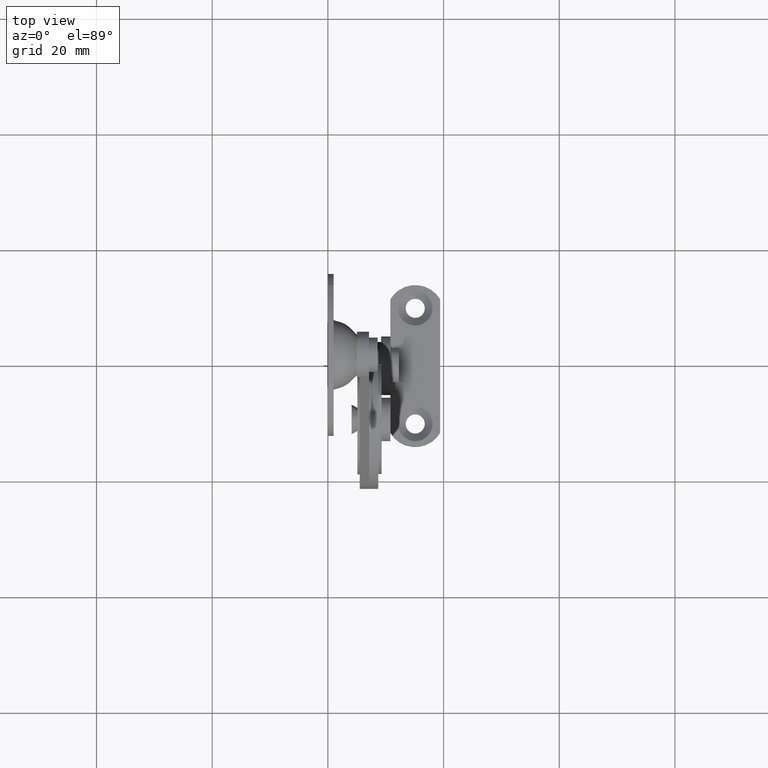
[diagram: clean part render]
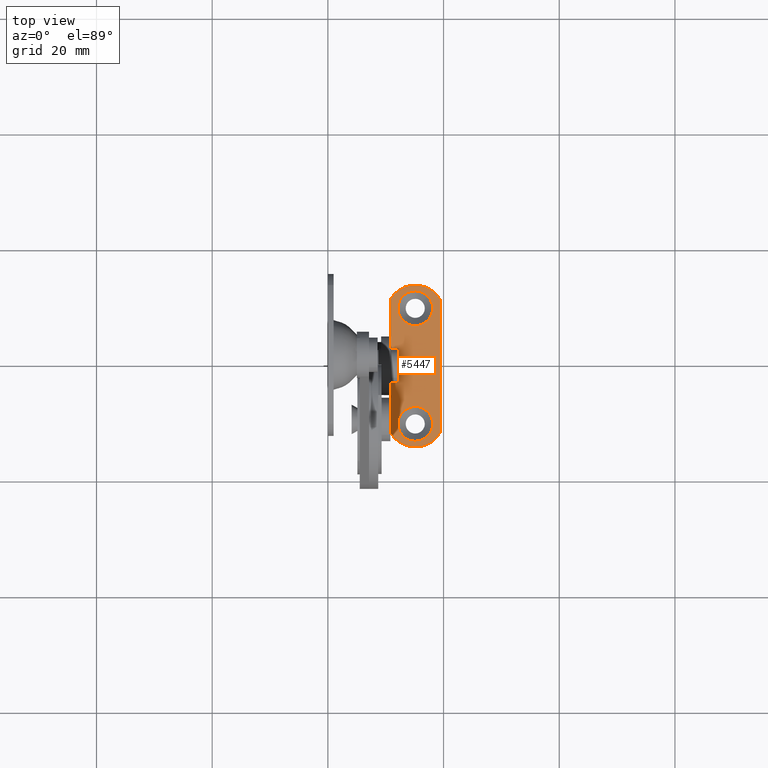
[diagram: same view with one face highlighted and labeled with its STEP entity id]
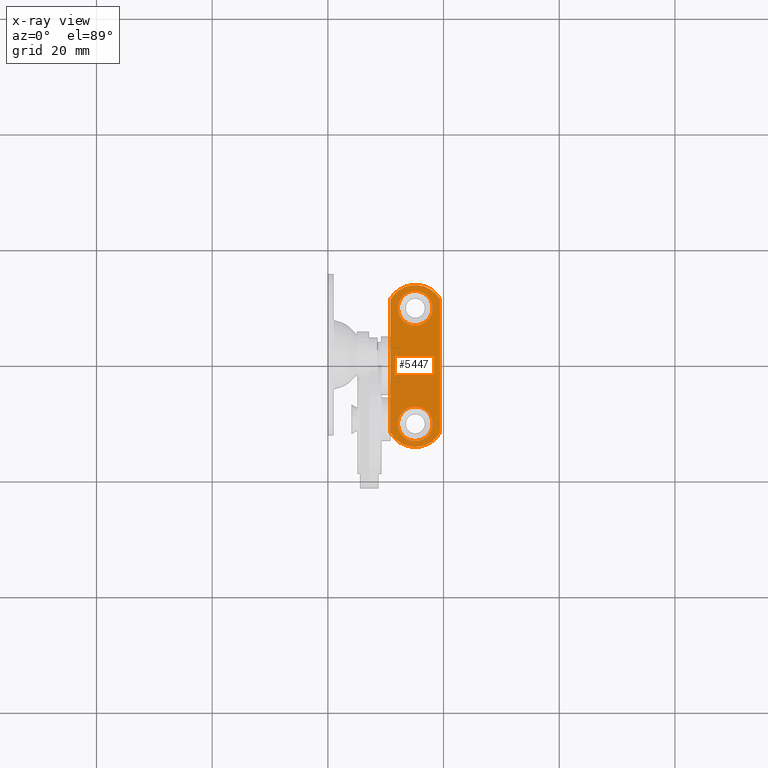
[diagram: x-ray of the same camera — body ghosted, the highlighted face saturated]
A machine part, top view. The second image highlights one B-rep face of the part: STEP entity #5447.
The next image is the same camera in x-ray: the body ghosted, the highlighted face saturated — about 0% of this face is hidden behind the body in this view.
In plain terms, the highlighted face is a freeform B-spline surface patch.
Its self-contained STEP definition (entity closure, byte-faithful):
#4293=CARTESIAN_POINT('',(13.162773359914031,-7.709332450463078,-57.999999729024040));
#4294=VERTEX_POINT('',#4293);
#4300=CARTESIAN_POINT('',(12.100000000002050,-10.0,-58.0));
#4301=VERTEX_POINT('',#4300);
#4302=CARTESIAN_POINT('',(13.162773359914031,-7.709332450463078,-57.999999729024040));
#4303=CARTESIAN_POINT('',(13.007280133966180,-7.840804967206789,-57.999999744576627));
#4304=CARTESIAN_POINT('',(12.694789849034709,-8.165030385356998,-57.999999782931120));
#4305=CARTESIAN_POINT('',(12.362629249856070,-8.715345442064965,-57.999999848030910));
#4306=CARTESIAN_POINT('',(12.148809581624709,-9.348413734711855,-57.999999922920431));
#4307=CARTESIAN_POINT('',(12.099951950325140,-9.769219532580742,-57.999999972699641));
#4308=CARTESIAN_POINT('',(12.100000000002050,-10.0,-58.0));
#4309=B_SPLINE_CURVE_WITH_KNOTS('',3,(#4302,#4303,#4304,#4305,#4306,#4307,#4308),.UNSPECIFIED.,.F.,.U.,(4,1,1,1,4),(0.000000050232684,0.610880641542182,1.343913375715213,1.914093232973730,2.606425233096739),.UNSPECIFIED.);
#4310=EDGE_CURVE('',#4294,#4301,#4309,.T.);
#4312=CARTESIAN_POINT('',(15.100002198323301,-12.999999999999201,-58.0));
#4313=VERTEX_POINT('',#4312);
#4314=CARTESIAN_POINT('',(12.100000000002050,-10.0,-58.0));
#4315=CARTESIAN_POINT('',(12.099829839507681,-10.319093579823839,-57.999999999999943));
#4316=CARTESIAN_POINT('',(12.175111650907411,-10.785304401216081,-58.000000000000107));
#4317=CARTESIAN_POINT('',(12.429464646570301,-11.399204609142680,-57.999999999999922));
#4318=CARTESIAN_POINT('',(12.719714037497200,-11.857602095192201,-58.000000000000007));
#4319=CARTESIAN_POINT('',(13.127845110601911,-12.286267264025630,-58.000000000000092));
#4320=CARTESIAN_POINT('',(13.611765941469249,-12.627084260445161,-57.999999999999943));
#4321=CARTESIAN_POINT('',(14.265611471135051,-12.916962740594601,-57.999999999999943));
#4322=CARTESIAN_POINT('',(14.780912233271570,-13.000175454037199,-58.000000000000277));
#4323=CARTESIAN_POINT('',(15.100002198323301,-12.999999999999201,-58.0));
#4324=B_SPLINE_CURVE_WITH_KNOTS('',3,(#4314,#4315,#4316,#4317,#4318,#4319,#4320,#4321,#4322,#4323),.UNSPECIFIED.,.F.,.U.,(4,1,1,1,1,1,1,4),(0.000000080105825,0.957223162310167,1.399033147921764,1.988114693763748,2.577133832276427,3.166201750299932,3.755286619769515,4.712508472046030),.UNSPECIFIED.);
#4325=EDGE_CURVE('',#4301,#4313,#4324,.T.);
#4327=CARTESIAN_POINT('',(18.100000000002051,-10.0,-58.0));
#4328=VERTEX_POINT('',#4327);
#4329=CARTESIAN_POINT('',(15.100002198323301,-12.999999999999201,-58.0));
#4330=CARTESIAN_POINT('',(15.419092672400311,-13.000175655917960,-58.000000000000043));
#4331=CARTESIAN_POINT('',(15.934392378514939,-12.916961602010200,-57.999999999999957));
#4332=CARTESIAN_POINT('',(16.588238213817760,-12.627084499020039,-58.000000000000092));
#4333=CARTESIAN_POINT('',(17.072157662598801,-12.286267497545071,-57.999999999999659));
#4334=CARTESIAN_POINT('',(17.480288518105059,-11.857602100662991,-58.000000000000412));
#4335=CARTESIAN_POINT('',(17.770537597116391,-11.399204700474860,-57.999999999999829));
#4336=CARTESIAN_POINT('',(18.024889080155319,-10.785302184748700,-58.000000000000142));
#4337=CARTESIAN_POINT('',(18.100171173697749,-10.319093561579191,-57.999999999999872));
#4338=CARTESIAN_POINT('',(18.100000000002051,-10.0,-58.0));
#4339=B_SPLINE_CURVE_WITH_KNOTS('',3,(#4329,#4330,#4331,#4332,#4333,#4334,#4335,#4336,#4337,#4338),.UNSPECIFIED.,.F.,.U.,(4,1,1,1,1,1,1,4),(0.000000083118768,0.957222661215645,1.546306471380472,2.135372680035321,2.724391496875172,3.313474384742685,3.755284644074611,4.712505993963807),.UNSPECIFIED.);
#4340=EDGE_CURVE('',#4313,#4328,#4339,.T.);
#4342=CARTESIAN_POINT('',(17.276122515882111,-7.934936839601360,-58.000000274413622));
#4343=VERTEX_POINT('',#4342);
#4344=CARTESIAN_POINT('',(18.100000000002051,-10.0,-58.0));
#4345=CARTESIAN_POINT('',(18.100173185999719,-9.691541985657207,-58.000000040989079));
#4346=CARTESIAN_POINT('',(18.022437689840871,-9.193416657527200,-58.000000107182018));
#4347=CARTESIAN_POINT('',(17.723088729257281,-8.491970451148662,-58.000000200392783));
#4348=CARTESIAN_POINT('',(17.455840641532550,-8.124194251529259,-58.000000249264431));
#4349=CARTESIAN_POINT('',(17.276122515882111,-7.934936839601360,-58.000000274413622));
#4350=B_SPLINE_CURVE_WITH_KNOTS('',3,(#4344,#4345,#4346,#4347,#4348,#4349),.UNSPECIFIED.,.F.,.U.,(4,1,1,4),(0.000000027669152,0.925327585428231,1.494738089896377,2.277707770238924),.UNSPECIFIED.);
#4351=EDGE_CURVE('',#4328,#4343,#4350,.T.);
#4383=CARTESIAN_POINT('',(15.099997801680781,-7.000000000000806,-58.0));
#4384=VERTEX_POINT('',#4383);
#4385=CARTESIAN_POINT('',(17.276122515882111,-7.934936839601360,-58.000000274413622));
#4386=CARTESIAN_POINT('',(17.049305644386681,-7.695600970324104,-58.000000245811549));
#4387=CARTESIAN_POINT('',(16.618263794637219,-7.370626558139978,-58.000000191456373));
#4388=CARTESIAN_POINT('',(15.860805540372111,-7.067712129705384,-58.000000095939392));
#4389=CARTESIAN_POINT('',(15.378986290051779,-6.999907497504275,-58.000000035180953));
#4390=CARTESIAN_POINT('',(15.099997801680781,-7.000000000000806,-58.0));
#4391=B_SPLINE_CURVE_WITH_KNOTS('',3,(#4385,#4386,#4387,#4388,#4389,#4390),.UNSPECIFIED.,.F.,.U.,(4,1,1,4),(0.000000021350697,0.989138719912072,1.597838106708699,2.434801407515280),.UNSPECIFIED.);
#4392=EDGE_CURVE('',#4343,#4384,#4391,.T.);
#4394=CARTESIAN_POINT('',(15.099997801680781,-7.000000000000806,-58.0));
#4395=CARTESIAN_POINT('',(14.858681478578470,-6.999948243774648,-57.999999966245092));
#4396=CARTESIAN_POINT('',(14.441903359457870,-7.050568190311406,-57.999999907946730));
#4397=CARTESIAN_POINT('',(13.775002605547320,-7.278296894150926,-57.999999814661798));
#4398=CARTESIAN_POINT('',(13.380465209088699,-7.525069332331017,-57.999999759474477));
#4399=CARTESIAN_POINT('',(13.162773359914031,-7.709332450463078,-57.999999729024040));
#4400=B_SPLINE_CURVE_WITH_KNOTS('',3,(#4394,#4395,#4396,#4397,#4398,#4399),.UNSPECIFIED.,.F.,.U.,(4,1,1,4),(0.000000030099051,0.723953053645547,1.250439714695935,2.106024419985720),.UNSPECIFIED.);
#4401=EDGE_CURVE('',#4384,#4294,#4400,.T.);
#4641=CARTESIAN_POINT('',(13.162773359914031,12.290667549536920,-57.999999729024040));
#4642=VERTEX_POINT('',#4641);
#4648=CARTESIAN_POINT('',(12.100000000002050,10.0,-58.0));
#4649=VERTEX_POINT('',#4648);
#4650=CARTESIAN_POINT('',(13.162773359914031,12.290667549536920,-57.999999729024040));
#4651=CARTESIAN_POINT('',(12.851419329053121,12.028011303830720,-57.999999760095150));
#4652=CARTESIAN_POINT('',(12.450134441551929,11.515107112443060,-57.999999820769560));
#4653=CARTESIAN_POINT('',(12.153531377277080,10.692297424687570,-57.999999918104074));
#4654=CARTESIAN_POINT('',(12.099951621475901,10.230779728351081,-57.999999972700103));
#4655=CARTESIAN_POINT('',(12.100000000002050,10.0,-58.0));
#4656=B_SPLINE_CURVE_WITH_KNOTS('',3,(#4650,#4651,#4652,#4653,#4654,#4655),.UNSPECIFIED.,.F.,.U.,(4,1,1,4),(0.000000050231789,1.221767620673016,1.914093232973816,2.606425233096724),.UNSPECIFIED.);
#4657=EDGE_CURVE('',#4642,#4649,#4656,.T.);
#4659=CARTESIAN_POINT('',(15.100002198323301,7.000000000000805,-58.0));
#4660=VERTEX_POINT('',#4659);
#4661=CARTESIAN_POINT('',(12.100000000002050,10.0,-58.0));
#4662=CARTESIAN_POINT('',(12.099983668659290,9.803660487577663,-58.000000000000007));
#4663=CARTESIAN_POINT('',(12.145898469905660,9.337322414426962,-57.999999999999993));
#4664=CARTESIAN_POINT('',(12.395551516886121,8.611218247368722,-58.000000000000028));
#4665=CARTESIAN_POINT('',(12.838511126811619,7.982463603412859,-57.999999999999929));
#4666=CARTESIAN_POINT('',(13.436077585478101,7.466895534341649,-58.000000000000142));
#4667=CARTESIAN_POINT('',(14.167422446492640,7.098820316813868,-57.999999999999659));
#4668=CARTESIAN_POINT('',(14.780917524750310,6.999836924512534,-58.000000000000490));
#4669=CARTESIAN_POINT('',(15.100002198323301,7.000000000000805,-58.0));
#4670=B_SPLINE_CURVE_WITH_KNOTS('',3,(#4661,#4662,#4663,#4664,#4665,#4666,#4667,#4668,#4669),.UNSPECIFIED.,.F.,.U.,(4,1,1,1,1,1,4),(0.000000080108988,0.589038187936660,1.399033147923825,2.282628231677201,2.871657868394363,3.755286619770132,4.712508472045994),.UNSPECIFIED.);
#4671=EDGE_CURVE('',#4649,#4660,#4670,.T.);
#4673=CARTESIAN_POINT('',(18.100000000002051,10.0,-58.0));
#4674=VERTEX_POINT('',#4673);
#4675=CARTESIAN_POINT('',(15.100002198323301,7.000000000000805,-58.0));
#4676=CARTESIAN_POINT('',(15.345438257148469,6.999941551519186,-58.000000000000043));
#4677=CARTESIAN_POINT('',(15.762651727168871,7.051495571962199,-58.000000000000043));
#4678=CARTESIAN_POINT('',(16.345020339896909,7.251856516297916,-57.999999999999993));
#4679=CARTESIAN_POINT('',(16.838574290005688,7.531429848591856,-57.999999999999993));
#4680=CARTESIAN_POINT('',(17.286723476659560,7.918051214694929,-57.999999999999943));
#4681=CARTESIAN_POINT('',(17.726920202203640,8.481802063445423,-58.000000000000220));
#4682=CARTESIAN_POINT('',(18.030452069891432,9.190030490369594,-57.999999999999417));
#4683=CARTESIAN_POINT('',(18.100033203947380,9.754574779051984,-58.000000000000689));
#4684=CARTESIAN_POINT('',(18.100000000002051,10.0,-58.0));
#4685=B_SPLINE_CURVE_WITH_KNOTS('',3,(#4675,#4676,#4677,#4678,#4679,#4680,#4681,#4682,#4683,#4684),.UNSPECIFIED.,.F.,.U.,(4,1,1,1,1,1,1,4),(0.000000083118546,0.736311156477562,1.251760573748815,1.840849139479660,2.429878607753162,3.018926483365372,3.976196025984875,4.712505993963807),.UNSPECIFIED.);
#4686=EDGE_CURVE('',#4660,#4674,#4685,.T.);
#4688=CARTESIAN_POINT('',(17.276122515882111,12.065063160398640,-58.000000274413622));
#4689=VERTEX_POINT('',#4688);
#4690=CARTESIAN_POINT('',(18.100000000002051,10.0,-58.0));
#4691=CARTESIAN_POINT('',(18.100155171749339,10.308453301311880,-58.000000040988461));
#4692=CARTESIAN_POINT('',(18.011408520742830,10.877777343105310,-58.000000116642447));
#4693=CARTESIAN_POINT('',(17.685983993645390,11.570885259008300,-58.000000208745448));
#4694=CARTESIAN_POINT('',(17.406783048087469,11.927394024151580,-58.000000256119691));
#4695=CARTESIAN_POINT('',(17.276122515882111,12.065063160398640,-58.000000274413622));
#4696=B_SPLINE_CURVE_WITH_KNOTS('',3,(#4690,#4691,#4692,#4693,#4694,#4695),.UNSPECIFIED.,.F.,.U.,(4,1,1,4),(0.000000027669581,0.925327585428598,1.708280834657197,2.277707770238919),.UNSPECIFIED.);
#4697=EDGE_CURVE('',#4674,#4689,#4696,.T.);
#4729=CARTESIAN_POINT('',(15.099997801680781,12.999999999999201,-58.0));
#4730=VERTEX_POINT('',#4729);
#4731=CARTESIAN_POINT('',(17.276122515882111,12.065063160398640,-58.000000274413622));
#4732=CARTESIAN_POINT('',(17.119031191833461,12.230670364519961,-58.000000254604160));
#4733=CARTESIAN_POINT('',(16.786357465518790,12.509314833281030,-58.000000212653319));
#4734=CARTESIAN_POINT('',(16.063510153116528,12.887484645626810,-58.000000121500662));
#4735=CARTESIAN_POINT('',(15.480496250393751,13.000390725169730,-58.000000047981857));
#4736=CARTESIAN_POINT('',(15.099997801680781,12.999999999999201,-58.0));
#4737=B_SPLINE_CURVE_WITH_KNOTS('',3,(#4731,#4732,#4733,#4734,#4735,#4736),.UNSPECIFIED.,.F.,.U.,(4,1,1,4),(0.000000021351079,0.684787952695500,1.293487779079844,2.434801407515275),.UNSPECIFIED.);
#4738=EDGE_CURVE('',#4689,#4730,#4737,.T.);
#4740=CARTESIAN_POINT('',(15.099997801680781,12.999999999999201,-58.0));
#4741=CARTESIAN_POINT('',(14.727012458041861,13.000361909765070,-57.999999947827270));
#4742=CARTESIAN_POINT('',(14.025324334869850,12.867235670793679,-57.999999849676549));
#4743=CARTESIAN_POINT('',(13.413917171542110,12.503333747790011,-57.999999764153593));
#4744=CARTESIAN_POINT('',(13.162773359914031,12.290667549536920,-57.999999729024040));
#4745=B_SPLINE_CURVE_WITH_KNOTS('',3,(#4740,#4741,#4742,#4743,#4744),.UNSPECIFIED.,.F.,.U.,(4,1,4),(0.000000030098973,1.118817478545758,2.106024419985721),.UNSPECIFIED.);
#4746=EDGE_CURVE('',#4730,#4642,#4745,.T.);
#5099=CARTESIAN_POINT('',(10.799996948242040,-5.0,-58.0));
#5100=VERTEX_POINT('',#5099);
#5106=CARTESIAN_POINT('',(10.799996948242040,5.0,-58.0));
#5107=VERTEX_POINT('',#5106);
#5108=CARTESIAN_POINT('',(10.799996948242040,5.0,-58.0));
#5109=CARTESIAN_POINT('',(10.799996948242040,-5.0,-58.0));
#5110=QUASI_UNIFORM_CURVE('',1,(#5108,#5109),.UNSPECIFIED.,.F.,.U.);
#5111=EDGE_CURVE('',#5107,#5100,#5110,.T.);
#5279=CARTESIAN_POINT('',(10.799996948242040,-11.551468835984981,-58.0));
#5280=VERTEX_POINT('',#5279);
#5281=CARTESIAN_POINT('',(10.799996948242040,-11.551468835984981,-58.0));
#5282=CARTESIAN_POINT('',(10.799996948242040,-5.0,-58.0));
#5283=QUASI_UNIFORM_CURVE('',1,(#5281,#5282),.UNSPECIFIED.,.F.,.U.);
#5284=EDGE_CURVE('',#5280,#5100,#5283,.T.);
#5310=CARTESIAN_POINT('',(19.400003051762049,-11.551468835985020,-58.0));
#5311=VERTEX_POINT('',#5310);
#5312=CARTESIAN_POINT('',(10.799996948242040,-11.551468835984981,-58.0));
#5313=CARTESIAN_POINT('',(11.006284153252880,-11.899304739150370,-58.000000000000043));
#5314=CARTESIAN_POINT('',(11.487329008506160,-12.522942212957640,-57.999999999999943));
#5315=CARTESIAN_POINT('',(12.289432436499331,-13.170802932763671,-58.000000000000043));
#5316=CARTESIAN_POINT('',(13.098960832712249,-13.606016120895630,-57.999999999999943));
#5317=CARTESIAN_POINT('',(14.020245427479029,-13.923374600802360,-57.999999999999901));
#5318=CARTESIAN_POINT('',(15.154764671712019,-14.052424392477270,-58.000000000000348));
#5319=CARTESIAN_POINT('',(16.365379569863649,-13.884835685999510,-57.999999999999879));
#5320=CARTESIAN_POINT('',(17.553516493412769,-13.421360351093449,-57.999999999999922));
#5321=CARTESIAN_POINT('',(18.609555986091362,-12.649879807300911,-58.000000000000249));
#5322=CARTESIAN_POINT('',(19.179972445613799,-11.922497344081380,-57.999999999999723));
#5323=CARTESIAN_POINT('',(19.400003051762049,-11.551468835985020,-58.0));
#5324=B_SPLINE_CURVE_WITH_KNOTS('',3,(#5312,#5313,#5314,#5315,#5316,#5317,#5318,#5319,#5320,#5321,#5322,#5323),.UNSPECIFIED.,.F.,.U.,(4,1,1,1,1,1,1,1,1,4),(0.000000206573796,1.213207407631298,2.345560637162779,3.073496250936900,3.963217697815153,5.257257865574508,6.470508211111543,7.602852110158939,9.058724196795680,10.352821547869571),.UNSPECIFIED.);
#5325=EDGE_CURVE('',#5280,#5311,#5324,.T.);
#5342=CARTESIAN_POINT('',(19.400003051762049,11.551468835985240,-58.0));
#5343=VERTEX_POINT('',#5342);
#5344=CARTESIAN_POINT('',(19.400003051762049,11.551468835985240,-58.0));
#5345=CARTESIAN_POINT('',(19.400003051762049,-11.551468835985020,-58.0));
#5346=QUASI_UNIFORM_CURVE('',1,(#5344,#5345),.UNSPECIFIED.,.F.,.U.);
#5347=EDGE_CURVE('',#5343,#5311,#5346,.T.);
#5373=CARTESIAN_POINT('',(10.799996948242040,11.551468835985160,-58.0));
#5374=VERTEX_POINT('',#5373);
#5375=CARTESIAN_POINT('',(19.400003051762049,11.551468835985240,-58.0));
#5376=CARTESIAN_POINT('',(19.193732072303590,11.899321301403290,-58.000000000000043));
#5377=CARTESIAN_POINT('',(18.812164730275381,12.393864999411999,-57.999999999999929));
#5378=CARTESIAN_POINT('',(18.126398503230661,13.005017869865361,-58.000000000000092));
#5379=CARTESIAN_POINT('',(17.490088788815140,13.416706479229671,-57.999999999999950));
#5380=CARTESIAN_POINT('',(16.672842617789200,13.774345602834821,-57.999999999999829));
#5381=CARTESIAN_POINT('',(15.776380913755199,13.988589559873491,-58.000000000000433));
#5382=CARTESIAN_POINT('',(14.855911445753300,14.018305739904051,-57.999999999999602));
#5383=CARTESIAN_POINT('',(13.838358370280240,13.877659388594960,-58.000000000000909));
#5384=CARTESIAN_POINT('',(12.942856451267881,13.553028146257221,-57.999999999999112));
#5385=CARTESIAN_POINT('',(12.140343598531841,13.051845453012460,-58.000000000000590));
#5386=CARTESIAN_POINT('',(11.439519654272489,12.457238908262390,-57.999999999999098));
#5387=CARTESIAN_POINT('',(11.020018579725960,11.922515729958731,-58.000000000000767));
#5388=CARTESIAN_POINT('',(10.799996948242040,11.551468835985160,-58.0));
#5389=B_SPLINE_CURVE_WITH_KNOTS('',3,(#5375,#5376,#5377,#5378,#5379,#5380,#5381,#5382,#5383,#5384,#5385,#5386,#5387,#5388),.UNSPECIFIED.,.F.,.U.,(4,1,1,1,1,1,1,1,1,1,1,4),(0.000000206569512,1.213207407628289,1.860259494959339,2.749970563838345,3.477904911476556,4.529406396909601,5.499888719979153,6.227829626300219,7.602852110158745,8.330788801921692,9.058724196795760,10.352821547869580),.UNSPECIFIED.);
#5390=EDGE_CURVE('',#5343,#5374,#5389,.T.);
#5407=CARTESIAN_POINT('',(10.799996948242040,5.0,-58.0));
#5408=CARTESIAN_POINT('',(10.799996948242040,11.551468835985160,-58.0));
#5409=QUASI_UNIFORM_CURVE('',1,(#5407,#5408),.UNSPECIFIED.,.F.,.U.);
#5410=EDGE_CURVE('',#5107,#5374,#5409,.T.);
#5418=CARTESIAN_POINT('',(10.370427063693221,-15.398618323340759,-58.0));
#5419=CARTESIAN_POINT('',(19.829573551431238,-15.398618323340759,-58.0));
#5420=CARTESIAN_POINT('',(10.370427063693221,15.398588783270929,-58.0));
#5421=CARTESIAN_POINT('',(19.829573551431238,15.398588783270929,-58.0));
#5422=B_SPLINE_SURFACE_WITH_KNOTS('',1,1,((#5418,#5420),(#5419,#5421)),.UNSPECIFIED.,.F.,.F.,.U.,(2,2),(2,2),(0.0,9.459146487738027),(0.0,30.797207106611680),.UNSPECIFIED.);
#5423=ORIENTED_EDGE('',*,*,#5111,.T.);
#5424=ORIENTED_EDGE('',*,*,#5284,.F.);
#5425=ORIENTED_EDGE('',*,*,#5325,.T.);
#5426=ORIENTED_EDGE('',*,*,#5347,.F.);
#5427=ORIENTED_EDGE('',*,*,#5390,.T.);
#5428=ORIENTED_EDGE('',*,*,#5410,.F.);
#5429=EDGE_LOOP('',(#5423,#5424,#5425,#5426,#5427,#5428));
#5430=FACE_OUTER_BOUND('',#5429,.T.);
#5431=ORIENTED_EDGE('',*,*,#4671,.F.);
#5432=ORIENTED_EDGE('',*,*,#4657,.F.);
#5433=ORIENTED_EDGE('',*,*,#4746,.F.);
#5434=ORIENTED_EDGE('',*,*,#4738,.F.);
#5435=ORIENTED_EDGE('',*,*,#4697,.F.);
#5436=ORIENTED_EDGE('',*,*,#4686,.F.);
#5437=EDGE_LOOP('',(#5431,#5432,#5433,#5434,#5435,#5436));
#5438=FACE_BOUND('',#5437,.T.);
#5439=ORIENTED_EDGE('',*,*,#4325,.F.);
#5440=ORIENTED_EDGE('',*,*,#4310,.F.);
#5441=ORIENTED_EDGE('',*,*,#4401,.F.);
#5442=ORIENTED_EDGE('',*,*,#4392,.F.);
#5443=ORIENTED_EDGE('',*,*,#4351,.F.);
#5444=ORIENTED_EDGE('',*,*,#4340,.F.);
#5445=EDGE_LOOP('',(#5439,#5440,#5441,#5442,#5443,#5444));
#5446=FACE_BOUND('',#5445,.T.);
#5447=ADVANCED_FACE('',(#5430,#5438,#5446),#5422,.T.);